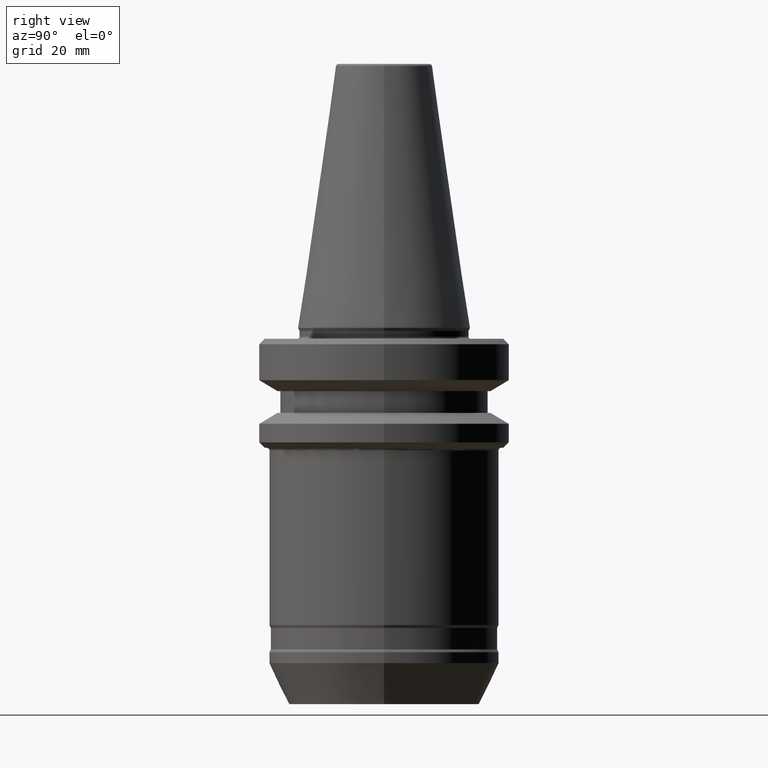
[diagram: clean part render]
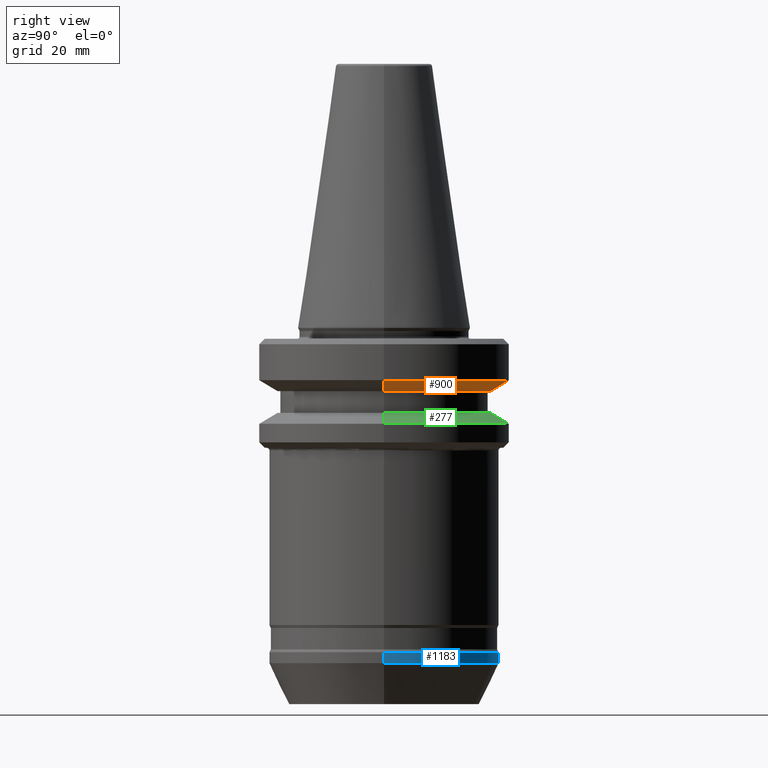
[diagram: same view with three faces highlighted in distinct colors, each labeled with its STEP entity id]
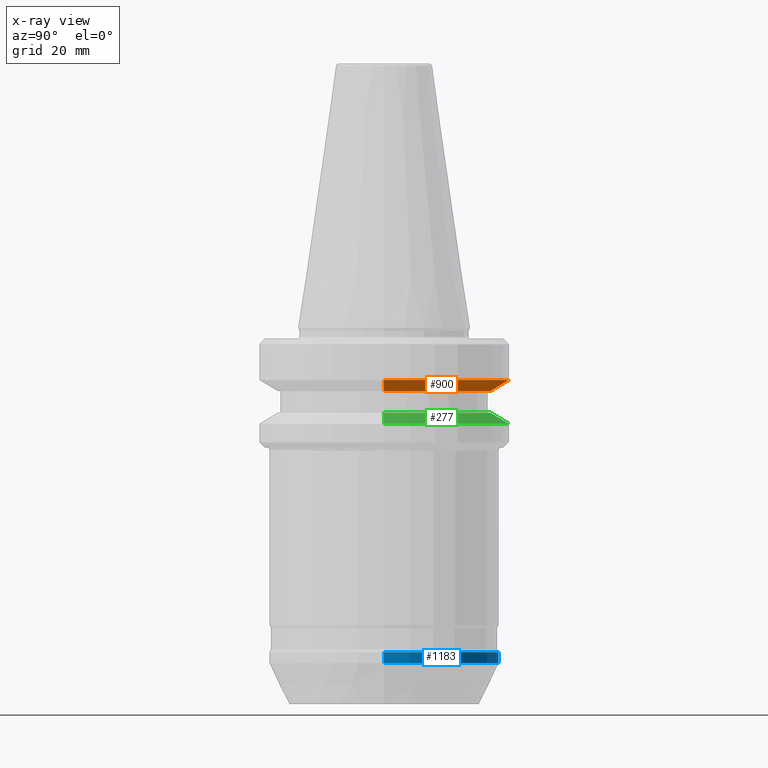
[diagram: x-ray of the same camera — body ghosted, the three highlighted faces saturated]
A machine part, right view with three faces highlighted in distinct colors.
The next image is the same camera in x-ray (body ghosted, the three faces saturated) — at least one of them is partly hidden behind the body in this view.
Their STEP definitions:

[orange] entity #900 — the highlighted conical surface has half-angle 60 deg.
#23 = CARTESIAN_POINT ( 'NONE',  ( 0.0000000000000000000, 0.0000000000000000000, -11.59999999999950000 ) ) ;
#51 = AXIS2_PLACEMENT_3D ( 'NONE', #23, #678, #128 ) ;
#75 = CARTESIAN_POINT ( 'NONE',  ( 0.0000000000000000000, 0.0000000000000000000, -9.600117335054614300 ) ) ;
#100 = AXIS2_PLACEMENT_3D ( 'NONE', #75, #714, #173 ) ;
#114 = CARTESIAN_POINT ( 'NONE',  ( -23.00000000000013100, 2.816687638038928500E-015, -9.600117335054614300 ) ) ;
#128 = DIRECTION ( 'NONE',  ( 1.000000000000000000, 0.0000000000000000000, 0.0000000000000000000 ) ) ;
#155 = CIRCLE ( 'NONE', #100, 23.00000000000013100 ) ;
#173 = DIRECTION ( 'NONE',  ( 1.000000000000000000, 0.0000000000000000000, 0.0000000000000000000 ) ) ;
#275 = DIRECTION ( 'NONE',  ( -0.8660254037844344900, 1.060575238724901900E-016, 0.5000000000000072200 ) ) ;
#280 = CARTESIAN_POINT ( 'NONE',  ( 19.53610161513941200, 0.0000000000000000000, -11.59999999999950000 ) ) ;
#283 = EDGE_CURVE ( 'NONE', #1007, #1156, #939, .T. ) ;
#299 = VECTOR ( 'NONE', #609, 1000.000000000000000 ) ;
#359 = VECTOR ( 'NONE', #275, 1000.000000000000000 ) ;
#388 = VERTEX_POINT ( 'NONE', #500 ) ;
#417 = VERTEX_POINT ( 'NONE', #114 ) ;
#497 = CARTESIAN_POINT ( 'NONE',  ( -19.53610161513941200, 2.604585034559360100E-015, -11.59999999999950000 ) ) ;
#500 = CARTESIAN_POINT ( 'NONE',  ( 23.00000000000013100, 0.0000000000000000000, -9.600117335054614300 ) ) ;
#504 = EDGE_CURVE ( 'NONE', #388, #417, #155, .T. ) ;
#540 = DIRECTION ( 'NONE',  ( -0.0000000000000000000, -0.0000000000000000000, 1.000000000000000000 ) ) ;
#555 = EDGE_LOOP ( 'NONE', ( #979, #842, #1013, #1024 ) ) ;
#560 = CONICAL_SURFACE ( 'NONE', #896, 19.53610161513941200, 1.047197551196589400 ) ;
#609 = DIRECTION ( 'NONE',  ( 0.8660254037844344900, 0.0000000000000000000, 0.5000000000000072200 ) ) ;
#634 = DIRECTION ( 'NONE',  ( 1.000000000000000000, 0.0000000000000000000, 0.0000000000000000000 ) ) ;
#666 = FACE_OUTER_BOUND ( 'NONE', #555, .T. ) ;
#678 = DIRECTION ( 'NONE',  ( -0.0000000000000000000, -0.0000000000000000000, 1.000000000000000000 ) ) ;
#714 = DIRECTION ( 'NONE',  ( -0.0000000000000000000, -0.0000000000000000000, 1.000000000000000000 ) ) ;
#740 = LINE ( 'NONE', #1188, #359 ) ;
#842 = ORIENTED_EDGE ( 'NONE', *, *, #977, .T. ) ;
#866 = EDGE_CURVE ( 'NONE', #1007, #388, #1058, .T. ) ;
#883 = CARTESIAN_POINT ( 'NONE',  ( 19.53610161513941200, 0.0000000000000000000, -11.59999999999950000 ) ) ;
#896 = AXIS2_PLACEMENT_3D ( 'NONE', #1175, #540, #634 ) ;
#900 = ADVANCED_FACE ( 'NONE', ( #666 ), #560, .T. ) ;
#939 = CIRCLE ( 'NONE', #51, 19.53610161513941200 ) ;
#977 = EDGE_CURVE ( 'NONE', #1156, #417, #740, .T. ) ;
#979 = ORIENTED_EDGE ( 'NONE', *, *, #283, .T. ) ;
#1007 = VERTEX_POINT ( 'NONE', #280 ) ;
#1013 = ORIENTED_EDGE ( 'NONE', *, *, #504, .F. ) ;
#1024 = ORIENTED_EDGE ( 'NONE', *, *, #866, .F. ) ;
#1058 = LINE ( 'NONE', #883, #299 ) ;
#1156 = VERTEX_POINT ( 'NONE', #497 ) ;
#1175 = CARTESIAN_POINT ( 'NONE',  ( 0.0000000000000000000, 0.0000000000000000000, -11.59999999999950000 ) ) ;
#1188 = CARTESIAN_POINT ( 'NONE',  ( -19.53610161513941200, 2.392482431079791800E-015, -11.59999999999950000 ) ) ;

[blue] entity #1183 — the highlighted cylindrical surface (partial cylindrical patch) has radius 21 mm, axis along (-0, -0, 1).
#3 = AXIS2_PLACEMENT_3D ( 'NONE', #673, #759, #18 ) ;
#7 = CARTESIAN_POINT ( 'NONE',  ( 0.0000000000000000000, 0.0000000000000000000, -61.49422577821994900 ) ) ;
#18 = DIRECTION ( 'NONE',  ( 1.000000000000000000, 0.0000000000000000000, 0.0000000000000000000 ) ) ;
#101 = VERTEX_POINT ( 'NONE', #481 ) ;
#116 = DIRECTION ( 'NONE',  ( 1.000000000000000000, 0.0000000000000000000, 0.0000000000000000000 ) ) ;
#191 = LINE ( 'NONE', #657, #1041 ) ;
#267 = DIRECTION ( 'NONE',  ( -0.0000000000000000000, -0.0000000000000000000, 1.000000000000000000 ) ) ;
#291 = EDGE_CURVE ( 'NONE', #325, #403, #1134, .T. ) ;
#308 = EDGE_LOOP ( 'NONE', ( #658, #890, #518, #336 ) ) ;
#325 = VERTEX_POINT ( 'NONE', #486 ) ;
#336 = ORIENTED_EDGE ( 'NONE', *, *, #291, .F. ) ;
#367 = CIRCLE ( 'NONE', #547, 20.99999999997725900 ) ;
#403 = VERTEX_POINT ( 'NONE', #839 ) ;
#481 = CARTESIAN_POINT ( 'NONE',  ( -20.99999999997725900, 2.571758278206657000E-015, -59.50422577821979100 ) ) ;
#486 = CARTESIAN_POINT ( 'NONE',  ( 20.99999999997725900, 0.0000000000000000000, -61.49422577821994900 ) ) ;
#488 = DIRECTION ( 'NONE',  ( -0.0000000000000000000, -0.0000000000000000000, 1.000000000000000000 ) ) ;
#518 = ORIENTED_EDGE ( 'NONE', *, *, #929, .F. ) ;
#547 = AXIS2_PLACEMENT_3D ( 'NONE', #819, #267, #913 ) ;
#551 = VECTOR ( 'NONE', #763, 1000.000000000000000 ) ;
#582 = AXIS2_PLACEMENT_3D ( 'NONE', #7, #665, #116 ) ;
#590 = CARTESIAN_POINT ( 'NONE',  ( 20.99999999997725900, 0.0000000000000000000, 85.12022969343338700 ) ) ;
#657 = CARTESIAN_POINT ( 'NONE',  ( -20.99999999997725900, 2.571758278206657000E-015, 85.12022969343338700 ) ) ;
#658 = ORIENTED_EDGE ( 'NONE', *, *, #1138, .T. ) ;
#665 = DIRECTION ( 'NONE',  ( -0.0000000000000000000, -0.0000000000000000000, 1.000000000000000000 ) ) ;
#673 = CARTESIAN_POINT ( 'NONE',  ( 0.0000000000000000000, 0.0000000000000000000, 85.12022969343338700 ) ) ;
#718 = CIRCLE ( 'NONE', #582, 20.99999999997725900 ) ;
#723 = VERTEX_POINT ( 'NONE', #1085 ) ;
#759 = DIRECTION ( 'NONE',  ( -0.0000000000000000000, -0.0000000000000000000, 1.000000000000000000 ) ) ;
#763 = DIRECTION ( 'NONE',  ( -0.0000000000000000000, -0.0000000000000000000, 1.000000000000000000 ) ) ;
#819 = CARTESIAN_POINT ( 'NONE',  ( 0.0000000000000000000, 0.0000000000000000000, -59.50422577821979100 ) ) ;
#839 = CARTESIAN_POINT ( 'NONE',  ( 20.99999999997725900, 0.0000000000000000000, -59.50422577821979100 ) ) ;
#865 = CYLINDRICAL_SURFACE ( 'NONE', #3, 20.99999999997725900 ) ;
#890 = ORIENTED_EDGE ( 'NONE', *, *, #1120, .T. ) ;
#913 = DIRECTION ( 'NONE',  ( 1.000000000000000000, 0.0000000000000000000, 0.0000000000000000000 ) ) ;
#929 = EDGE_CURVE ( 'NONE', #403, #101, #367, .T. ) ;
#1041 = VECTOR ( 'NONE', #488, 1000.000000000000000 ) ;
#1085 = CARTESIAN_POINT ( 'NONE',  ( -20.99999999997725900, 2.571758278206657000E-015, -61.49422577821994900 ) ) ;
#1120 = EDGE_CURVE ( 'NONE', #723, #101, #191, .T. ) ;
#1134 = LINE ( 'NONE', #590, #551 ) ;
#1138 = EDGE_CURVE ( 'NONE', #325, #723, #718, .T. ) ;
#1183 = ADVANCED_FACE ( 'NONE', ( #1187 ), #865, .T. ) ;
#1187 = FACE_OUTER_BOUND ( 'NONE', #308, .T. ) ;

[green] entity #277 — the highlighted conical surface has half-angle 60 deg.
#45 = EDGE_CURVE ( 'NONE', #93, #672, #498, .T. ) ;
#58 = CONICAL_SURFACE ( 'NONE', #682, 23.00000000000013100, 1.047197551196619200 ) ;
#88 = ORIENTED_EDGE ( 'NONE', *, *, #45, .T. ) ;
#91 = CIRCLE ( 'NONE', #563, 19.53610161513763500 ) ;
#93 = VERTEX_POINT ( 'NONE', #621 ) ;
#95 = ORIENTED_EDGE ( 'NONE', *, *, #1100, .F. ) ;
#106 = EDGE_CURVE ( 'NONE', #672, #115, #644, .T. ) ;
#115 = VERTEX_POINT ( 'NONE', #791 ) ;
#150 = VECTOR ( 'NONE', #202, 1000.000000000000100 ) ;
#202 = DIRECTION ( 'NONE',  ( 0.8660254037844492500, 1.060575238724919900E-016, -0.4999999999999814000 ) ) ;
#203 = DIRECTION ( 'NONE',  ( -0.0000000000000000000, -0.0000000000000000000, 1.000000000000000000 ) ) ;
#238 = CARTESIAN_POINT ( 'NONE',  ( 23.00000000000013100, 0.0000000000000000000, -17.59988266494572100 ) ) ;
#277 = ADVANCED_FACE ( 'NONE', ( #914 ), #58, .T. ) ;
#400 = CARTESIAN_POINT ( 'NONE',  ( -19.53610161513763500, 0.0000000000000000000, -15.59999999999994800 ) ) ;
#431 = EDGE_LOOP ( 'NONE', ( #95, #88, #475, #1052 ) ) ;
#434 = VECTOR ( 'NONE', #580, 1000.000000000000100 ) ;
#441 = CARTESIAN_POINT ( 'NONE',  ( 0.0000000000000000000, 0.0000000000000000000, -17.59988266494572100 ) ) ;
#475 = ORIENTED_EDGE ( 'NONE', *, *, #106, .T. ) ;
#498 = LINE ( 'NONE', #798, #150 ) ;
#538 = LINE ( 'NONE', #1127, #434 ) ;
#563 = AXIS2_PLACEMENT_3D ( 'NONE', #742, #203, #836 ) ;
#580 = DIRECTION ( 'NONE',  ( -0.8660254037844492500, 0.0000000000000000000, -0.4999999999999814000 ) ) ;
#603 = CARTESIAN_POINT ( 'NONE',  ( 0.0000000000000000000, 0.0000000000000000000, -17.59988266494572100 ) ) ;
#621 = CARTESIAN_POINT ( 'NONE',  ( 19.53610161513763500, 2.604585034559251300E-015, -15.59999999999994800 ) ) ;
#625 = DIRECTION ( 'NONE',  ( 0.0000000000000000000, 0.0000000000000000000, -1.000000000000000000 ) ) ;
#644 = CIRCLE ( 'NONE', #1068, 23.00000000000013100 ) ;
#672 = VERTEX_POINT ( 'NONE', #238 ) ;
#682 = AXIS2_PLACEMENT_3D ( 'NONE', #441, #625, #903 ) ;
#733 = DIRECTION ( 'NONE',  ( -0.0000000000000000000, -0.0000000000000000000, 1.000000000000000000 ) ) ;
#742 = CARTESIAN_POINT ( 'NONE',  ( 0.0000000000000000000, 0.0000000000000000000, -15.59999999999994800 ) ) ;
#791 = CARTESIAN_POINT ( 'NONE',  ( -23.00000000000013100, 2.816687638038928500E-015, -17.59988266494572100 ) ) ;
#798 = CARTESIAN_POINT ( 'NONE',  ( 23.00000000000013100, 2.816687638038928500E-015, -17.59988266494572100 ) ) ;
#836 = DIRECTION ( 'NONE',  ( 1.000000000000000000, 0.0000000000000000000, 0.0000000000000000000 ) ) ;
#903 = DIRECTION ( 'NONE',  ( -1.000000000000000000, 0.0000000000000000000, 0.0000000000000000000 ) ) ;
#914 = FACE_OUTER_BOUND ( 'NONE', #431, .T. ) ;
#1052 = ORIENTED_EDGE ( 'NONE', *, *, #1151, .F. ) ;
#1068 = AXIS2_PLACEMENT_3D ( 'NONE', #603, #733, #1115 ) ;
#1100 = EDGE_CURVE ( 'NONE', #93, #1174, #91, .T. ) ;
#1115 = DIRECTION ( 'NONE',  ( 1.000000000000000000, 0.0000000000000000000, 0.0000000000000000000 ) ) ;
#1127 = CARTESIAN_POINT ( 'NONE',  ( -23.00000000000013100, 0.0000000000000000000, -17.59988266494572100 ) ) ;
#1151 = EDGE_CURVE ( 'NONE', #1174, #115, #538, .T. ) ;
#1174 = VERTEX_POINT ( 'NONE', #400 ) ;